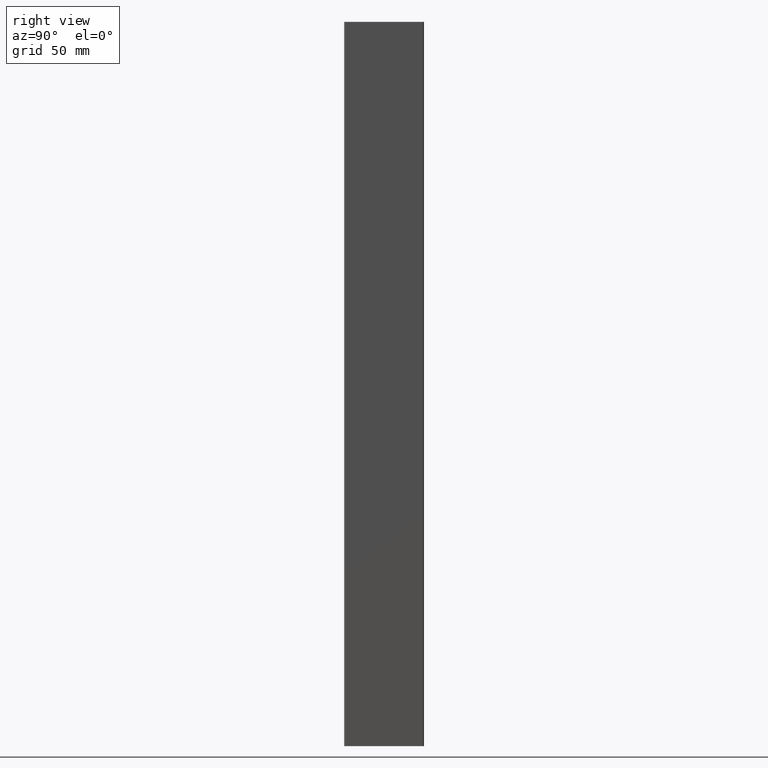
[diagram: clean part render]
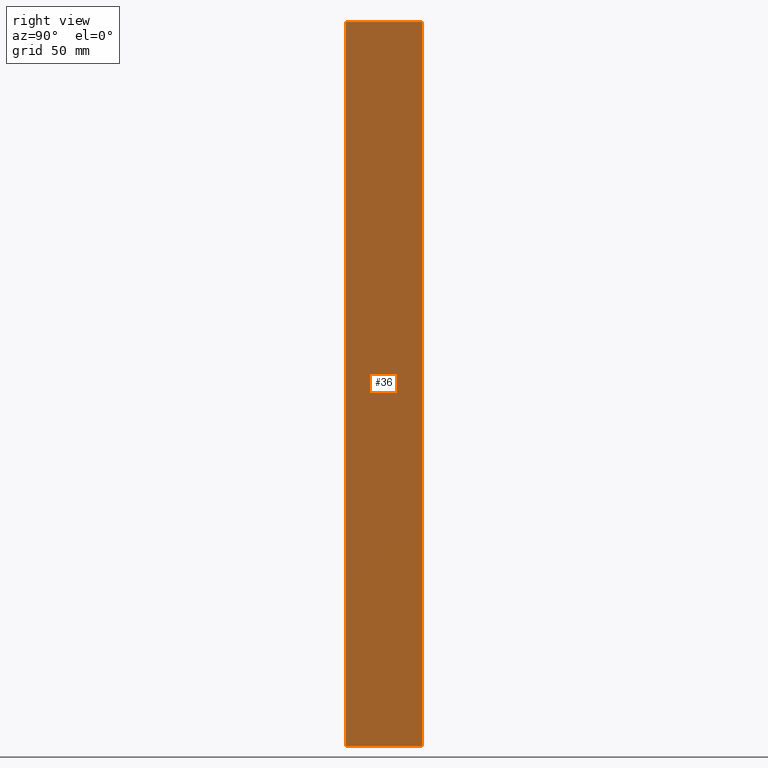
[diagram: same view with one face highlighted and labeled with its STEP entity id]
A machine part, right view. The second image highlights one B-rep face of the part: STEP entity #36.
In plain terms, the highlighted planar face has unit normal (-1, 0, 0).
Its self-contained STEP definition (entity closure, byte-faithful):
#31 = FACE_OUTER_BOUND ( 'NONE', #519, .T. ) ;
#36 = ADVANCED_FACE ( 'NONE', ( #31 ), #37, .F. ) ;
#37 = PLANE ( 'NONE',  #779 ) ;
#74 = CARTESIAN_POINT ( 'NONE',  ( 1.600000000000001600, -16.01794560409547000, 150.0000000000000000 ) ) ;
#86 = LINE ( 'NONE', #552, #416 ) ;
#91 = ORIENTED_EDGE ( 'NONE', *, *, #854, .T. ) ;
#104 = DIRECTION ( 'NONE',  ( 0.0000000000000000000, 0.0000000000000000000, 1.000000000000000000 ) ) ;
#135 = DIRECTION ( 'NONE',  ( -0.0000000000000000000, -0.0000000000000000000, -1.000000000000000000 ) ) ;
#177 = CARTESIAN_POINT ( 'NONE',  ( 1.600000000000002500, 16.01794560409559100, -150.0000000000000000 ) ) ;
#196 = DIRECTION ( 'NONE',  ( -1.317841821496351000E-016, 1.000000000000000000, -0.0000000000000000000 ) ) ;
#212 = VERTEX_POINT ( 'NONE', #553 ) ;
#242 = VERTEX_POINT ( 'NONE', #356 ) ;
#252 = EDGE_CURVE ( 'NONE', #518, #212, #86, .T. ) ;
#262 = LINE ( 'NONE', #446, #570 ) ;
#266 = ORIENTED_EDGE ( 'NONE', *, *, #848, .T. ) ;
#286 = LINE ( 'NONE', #74, #593 ) ;
#346 = LINE ( 'NONE', #465, #704 ) ;
#356 = CARTESIAN_POINT ( 'NONE',  ( 1.600000000000001600, -16.01794560409547000, -150.0000000000000000 ) ) ;
#382 = EDGE_CURVE ( 'NONE', #212, #574, #346, .T. ) ;
#416 = VECTOR ( 'NONE', #196, 1000.000000000000000 ) ;
#446 = CARTESIAN_POINT ( 'NONE',  ( 1.600000000000000100, -4.500000000000000900, -150.0000000000000000 ) ) ;
#452 = ORIENTED_EDGE ( 'NONE', *, *, #252, .F. ) ;
#464 = CARTESIAN_POINT ( 'NONE',  ( 1.600000000000000100, -4.500000000000000900, 150.0000000000000000 ) ) ;
#465 = CARTESIAN_POINT ( 'NONE',  ( 1.600000000000002500, 16.01794560409559100, 150.0000000000000000 ) ) ;
#503 = DIRECTION ( 'NONE',  ( 0.0000000000000000000, 1.000000000000000000, 0.0000000000000000000 ) ) ;
#518 = VERTEX_POINT ( 'NONE', #819 ) ;
#519 = EDGE_LOOP ( 'NONE', ( #91, #744, #452, #266 ) ) ;
#552 = CARTESIAN_POINT ( 'NONE',  ( 1.600000000000000100, -4.500000000000000900, 150.0000000000000000 ) ) ;
#553 = CARTESIAN_POINT ( 'NONE',  ( 1.600000000000002500, 16.01794560409559100, 150.0000000000000000 ) ) ;
#570 = VECTOR ( 'NONE', #503, 1000.000000000000000 ) ;
#574 = VERTEX_POINT ( 'NONE', #177 ) ;
#593 = VECTOR ( 'NONE', #135, 1000.000000000000000 ) ;
#679 = DIRECTION ( 'NONE',  ( -1.000000000000000000, 0.0000000000000000000, 0.0000000000000000000 ) ) ;
#704 = VECTOR ( 'NONE', #864, 1000.000000000000000 ) ;
#744 = ORIENTED_EDGE ( 'NONE', *, *, #382, .F. ) ;
#779 = AXIS2_PLACEMENT_3D ( 'NONE', #464, #679, #104 ) ;
#819 = CARTESIAN_POINT ( 'NONE',  ( 1.600000000000001600, -16.01794560409547000, 150.0000000000000000 ) ) ;
#848 = EDGE_CURVE ( 'NONE', #518, #242, #286, .T. ) ;
#854 = EDGE_CURVE ( 'NONE', #242, #574, #262, .T. ) ;
#864 = DIRECTION ( 'NONE',  ( -0.0000000000000000000, -0.0000000000000000000, -1.000000000000000000 ) ) ;